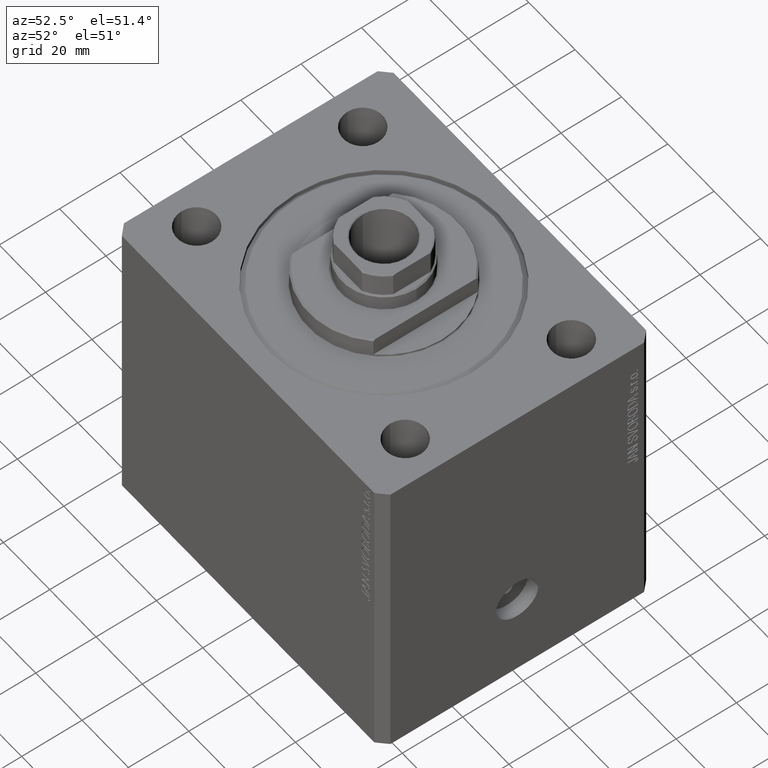
[diagram: clean part render]
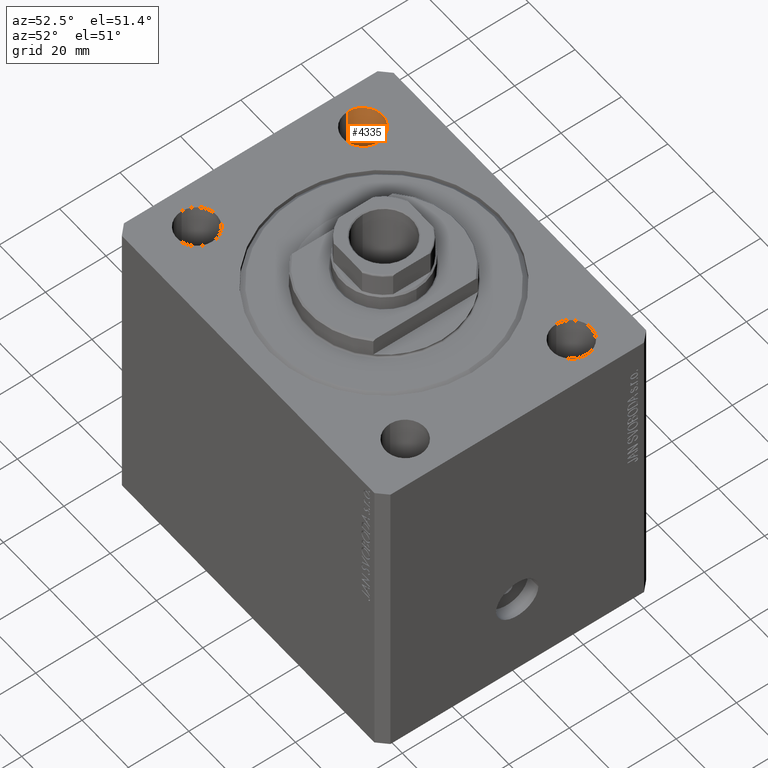
[diagram: same view with one face highlighted and labeled with its STEP entity id]
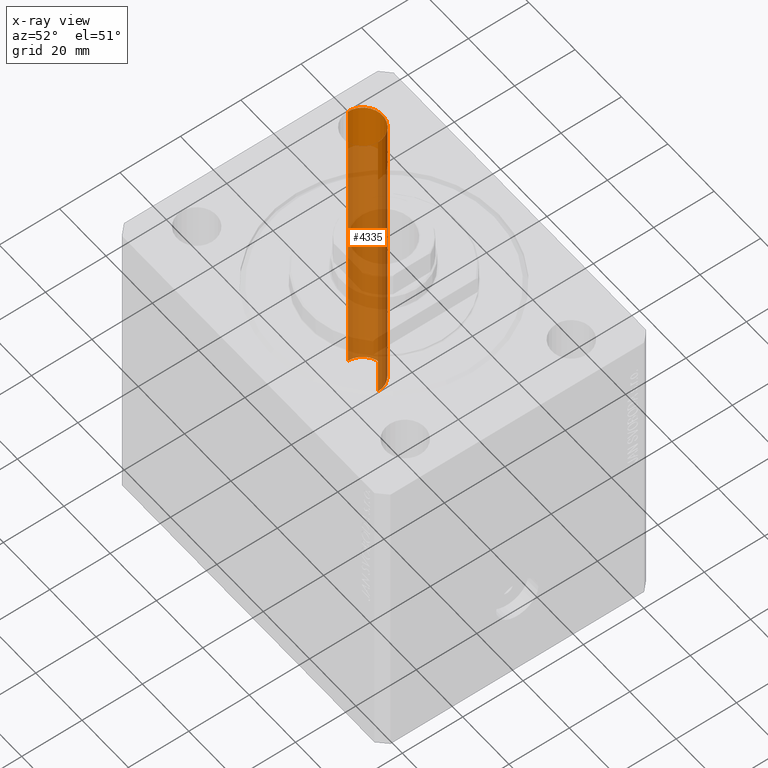
[diagram: x-ray of the same camera — body ghosted, the highlighted face saturated]
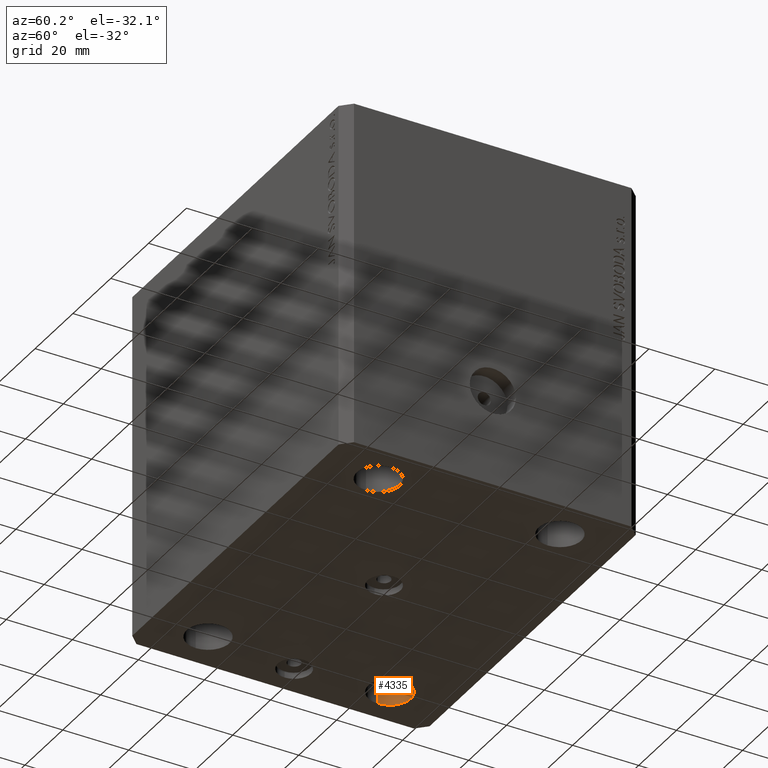
[diagram: same view with one face highlighted and labeled with its STEP entity id]
A machine part, auxiliary view. The second image highlights one B-rep face of the part: STEP entity #4335.
The next image is the same camera in x-ray: the body ghosted, the highlighted face saturated — about 83% of this face is hidden behind the body in this view.
A second angle (auxiliary view) of the same face is appended — the face is thin or edge-on in the first view.
In plain terms, the highlighted cylindrical surface (edge-blend (fillet) strip) has radius 6.5 mm, axis along (0, 0, 1).
Its self-contained STEP definition (entity closure, byte-faithful):
#236 = CYLINDRICAL_SURFACE ( 'NONE', #18895, 6.499999999999999112 ) ;
#850 = LINE ( 'NONE', #14838, #25106 ) ;
#1295 = DIRECTION ( 'NONE',  ( -0.000000000000000000, -0.000000000000000000, 1.000000000000000000 ) ) ;
#2752 = CARTESIAN_POINT ( 'NONE',  ( -51.50000000000000000, 27.49999999999999645, -105.0000000000000000 ) ) ;
#4335 = ADVANCED_FACE ( 'NONE', ( #32065 ), #236, .F. ) ;
#4633 = ORIENTED_EDGE ( 'NONE', *, *, #10551, .T. ) ;
#5213 = CARTESIAN_POINT ( 'NONE',  ( -45.00000000000000000, 27.49999999999999645, -105.0000000000000000 ) ) ;
#7564 = EDGE_LOOP ( 'NONE', ( #24271, #28521, #34471, #4633 ) ) ;
#7737 = VERTEX_POINT ( 'NONE', #23664 ) ;
#8173 = DIRECTION ( 'NONE',  ( 1.000000000000000000, 0.000000000000000000, 0.000000000000000000 ) ) ;
#10551 = EDGE_CURVE ( 'NONE', #23177, #28059, #37791, .T. ) ;
#11066 = DIRECTION ( 'NONE',  ( -0.000000000000000000, -0.000000000000000000, 1.000000000000000000 ) ) ;
#11299 = VERTEX_POINT ( 'NONE', #2752 ) ;
#11340 = DIRECTION ( 'NONE',  ( 0.000000000000000000, 0.000000000000000000, 1.000000000000000000 ) ) ;
#14086 = LINE ( 'NONE', #40922, #18340 ) ;
#14838 = CARTESIAN_POINT ( 'NONE',  ( -38.50000000000000000, 27.49999999999999645, -123.3847763108502278 ) ) ;
#16745 = EDGE_CURVE ( 'NONE', #11299, #28059, #14086, .T. ) ;
#18340 = VECTOR ( 'NONE', #20168, 1000.000000000000000 ) ;
#18744 = DIRECTION ( 'NONE',  ( -0.000000000000000000, -0.000000000000000000, -1.000000000000000000 ) ) ;
#18895 = AXIS2_PLACEMENT_3D ( 'NONE', #21455, #11066, #21232 ) ;
#20075 = CIRCLE ( 'NONE', #21553, 6.499999999999999112 ) ;
#20168 = DIRECTION ( 'NONE',  ( -0.000000000000000000, -0.000000000000000000, 1.000000000000000000 ) ) ;
#21232 = DIRECTION ( 'NONE',  ( 1.000000000000000000, 0.000000000000000000, 0.000000000000000000 ) ) ;
#21455 = CARTESIAN_POINT ( 'NONE',  ( -45.00000000000000000, 27.49999999999999645, -123.3847763108502278 ) ) ;
#21553 = AXIS2_PLACEMENT_3D ( 'NONE', #5213, #18744, #25311 ) ;
#22074 = CARTESIAN_POINT ( 'NONE',  ( -51.50000000000000000, 27.49999999999999645, 0.000000000000000000 ) ) ;
#22830 = EDGE_CURVE ( 'NONE', #7737, #23177, #850, .T. ) ;
#23177 = VERTEX_POINT ( 'NONE', #44266 ) ;
#23664 = CARTESIAN_POINT ( 'NONE',  ( -38.50000000000000000, 27.49999999999999645, -105.0000000000000000 ) ) ;
#24271 = ORIENTED_EDGE ( 'NONE', *, *, #16745, .F. ) ;
#25106 = VECTOR ( 'NONE', #1295, 1000.000000000000000 ) ;
#25311 = DIRECTION ( 'NONE',  ( 1.000000000000000000, 0.000000000000000000, 0.000000000000000000 ) ) ;
#28059 = VERTEX_POINT ( 'NONE', #22074 ) ;
#28521 = ORIENTED_EDGE ( 'NONE', *, *, #36883, .T. ) ;
#30587 = AXIS2_PLACEMENT_3D ( 'NONE', #42465, #11340, #8173 ) ;
#32065 = FACE_OUTER_BOUND ( 'NONE', #7564, .T. ) ;
#34471 = ORIENTED_EDGE ( 'NONE', *, *, #22830, .T. ) ;
#36883 = EDGE_CURVE ( 'NONE', #11299, #7737, #20075, .T. ) ;
#37791 = CIRCLE ( 'NONE', #30587, 6.499999999999999112 ) ;
#40922 = CARTESIAN_POINT ( 'NONE',  ( -51.50000000000000000, 27.49999999999999645, -123.3847763108502278 ) ) ;
#42465 = CARTESIAN_POINT ( 'NONE',  ( -45.00000000000000000, 27.49999999999999645, 0.000000000000000000 ) ) ;
#44266 = CARTESIAN_POINT ( 'NONE',  ( -38.50000000000000000, 27.49999999999999645, 0.000000000000000000 ) ) ;